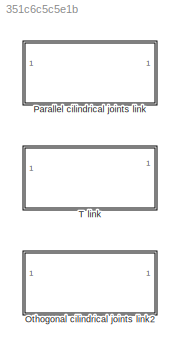
MODEL slx_351c6c5c5e1b
KIND library
CONFIG AbsTol = auto
CONFIG EnableMultiTasking = off
CONFIG FixedStep = auto
CONFIG MaxStep = auto
CONFIG MinStep = auto
CONFIG RelTol = 1e-3
CONFIG SampleTimeConstraint = Unconstrained
CONFIG SolverName = VariableStepAuto
CONFIG StartTime = 0.0
CONFIG StopTime = 10.0
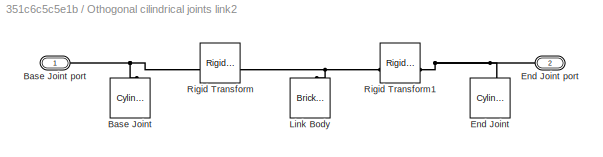
BLOCK [SubSystem] Othogonal cilindrical joints link2
  VariantControl = Choice
BLOCK [Reference] Othogonal cilindrical joints link2/Base Joint  REF=sm_lib/Body Elements/Cylindrical Solid
  NameLocation = right
  SourceBlock = sm_lib/Body Elements/Cylindrical Solid
  SourceType = Cylindrical Solid
BLOCK [PMIOPort] Othogonal cilindrical joints link2/Base Joint port
  Side = Left
BLOCK [Reference] Othogonal cilindrical joints link2/End Joint  REF=sm_lib/Body Elements/Cylindrical Solid
  NameLocation = right
  SourceBlock = sm_lib/Body Elements/Cylindrical Solid
  SourceType = Cylindrical Solid
BLOCK [PMIOPort] Othogonal cilindrical joints link2/End Joint port
  NameLocation = top
  Port = 2
  Side = Right
BLOCK [Reference] Othogonal cilindrical joints link2/Link Body  REF=sm_lib/Body Elements/Brick Solid
  NameLocation = right
  SourceBlock = sm_lib/Body Elements/Brick Solid
  SourceType = Brick Solid
BLOCK [Reference] Othogonal cilindrical joints link2/Rigid Transform  REF=sm_lib/Frames and
Transforms/Rigid
Transform
  SourceBlock = sm_lib/Frames and\nTransforms/Rigid\nTransform
  SourceType = Rigid\nTransform
BLOCK [Reference] Othogonal cilindrical joints link2/Rigid Transform1  REF=sm_lib/Frames and
Transforms/Rigid
Transform
  SourceBlock = sm_lib/Frames and\nTransforms/Rigid\nTransform
  SourceType = Rigid\nTransform
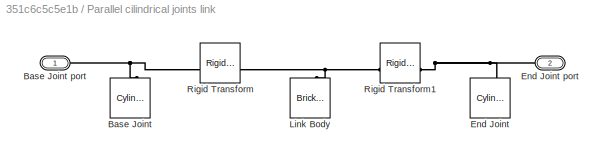
BLOCK [SubSystem] Parallel cilindrical joints link
  NameLocation = top
  VariantControl = Choice
BLOCK [Reference] Parallel cilindrical joints link/Base Joint  REF=sm_lib/Body Elements/Cylindrical Solid
  NameLocation = right
  SourceBlock = sm_lib/Body Elements/Cylindrical Solid
  SourceType = Cylindrical Solid
BLOCK [PMIOPort] Parallel cilindrical joints link/Base Joint port
  Side = Left
BLOCK [Reference] Parallel cilindrical joints link/End Joint  REF=sm_lib/Body Elements/Cylindrical Solid
  NameLocation = right
  SourceBlock = sm_lib/Body Elements/Cylindrical Solid
  SourceType = Cylindrical Solid
BLOCK [PMIOPort] Parallel cilindrical joints link/End Joint port
  NameLocation = top
  Port = 2
  Side = Right
BLOCK [Reference] Parallel cilindrical joints link/Link Body  REF=sm_lib/Body Elements/Brick Solid
  NameLocation = right
  SourceBlock = sm_lib/Body Elements/Brick Solid
  SourceType = Brick Solid
BLOCK [Reference] Parallel cilindrical joints link/Rigid Transform  REF=sm_lib/Frames and
Transforms/Rigid
Transform
  SourceBlock = sm_lib/Frames and\nTransforms/Rigid\nTransform
  SourceType = Rigid\nTransform
BLOCK [Reference] Parallel cilindrical joints link/Rigid Transform1  REF=sm_lib/Frames and
Transforms/Rigid
Transform
  SourceBlock = sm_lib/Frames and\nTransforms/Rigid\nTransform
  SourceType = Rigid\nTransform
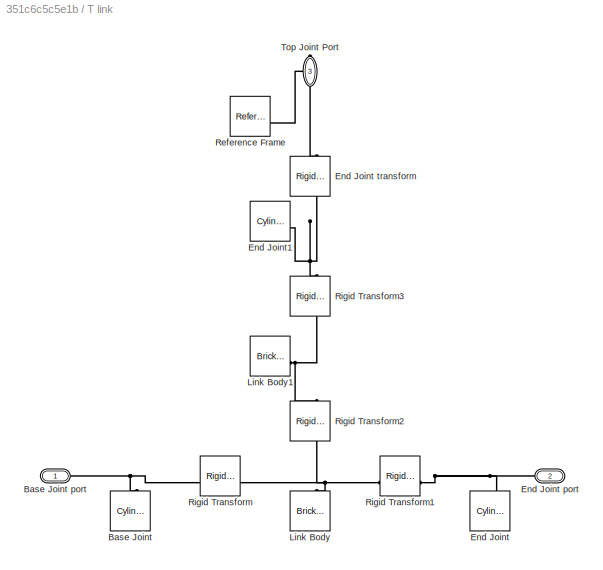
BLOCK [SubSystem] T link
  VariantControl = Choice
BLOCK [Reference] T link/Base Joint  REF=sm_lib/Body Elements/Cylindrical Solid
  NameLocation = right
  SourceBlock = sm_lib/Body Elements/Cylindrical Solid
  SourceType = Cylindrical Solid
BLOCK [PMIOPort] T link/Base Joint port
  Side = Left
BLOCK [Reference] T link/End Joint  REF=sm_lib/Body Elements/Cylindrical Solid
  NameLocation = right
  SourceBlock = sm_lib/Body Elements/Cylindrical Solid
  SourceType = Cylindrical Solid
BLOCK [PMIOPort] T link/End Joint port
  NameLocation = top
  Port = 2
  Side = Right
BLOCK [Reference] T link/End Joint transform  REF=sm_lib/Frames and
Transforms/Rigid
Transform
  NameLocation = right
  SourceBlock = sm_lib/Frames and\nTransforms/Rigid\nTransform
  SourceType = Rigid\nTransform
BLOCK [Reference] T link/End Joint1  REF=sm_lib/Body Elements/Cylindrical Solid
  SourceBlock = sm_lib/Body Elements/Cylindrical Solid
  SourceType = Cylindrical Solid
BLOCK [Reference] T link/Link Body  REF=sm_lib/Body Elements/Brick Solid
  NameLocation = right
  SourceBlock = sm_lib/Body Elements/Brick Solid
  SourceType = Brick Solid
BLOCK [Reference] T link/Link Body1  REF=sm_lib/Body Elements/Brick Solid
  SourceBlock = sm_lib/Body Elements/Brick Solid
  SourceType = Brick Solid
BLOCK [Reference] T link/Reference Frame  REF=sm_lib/Frames and
Transforms/Reference
Frame
  SourceBlock = sm_lib/Frames and\nTransforms/Reference\nFrame
  SourceType = Reference\nFrame
BLOCK [Reference] T link/Rigid Transform  REF=sm_lib/Frames and
Transforms/Rigid
Transform
  SourceBlock = sm_lib/Frames and\nTransforms/Rigid\nTransform
  SourceType = Rigid\nTransform
BLOCK [Reference] T link/Rigid Transform1  REF=sm_lib/Frames and
Transforms/Rigid
Transform
  SourceBlock = sm_lib/Frames and\nTransforms/Rigid\nTransform
  SourceType = Rigid\nTransform
BLOCK [Reference] T link/Rigid Transform2  REF=sm_lib/Frames and
Transforms/Rigid
Transform
  NameLocation = left
  SourceBlock = sm_lib/Frames and\nTransforms/Rigid\nTransform
  SourceType = Rigid\nTransform
BLOCK [Reference] T link/Rigid Transform3  REF=sm_lib/Frames and
Transforms/Rigid
Transform
  NameLocation = left
  SourceBlock = sm_lib/Frames and\nTransforms/Rigid\nTransform
  SourceType = Rigid\nTransform
BLOCK [PMIOPort] T link/Top Joint Port
  NameLocation = left
  Port = 3
  Side = Right
PNET net1: Othogonal cilindrical joints link2/Base Joint port:RConn1 -- Othogonal cilindrical joints link2/Base Joint:RConn1 -- Othogonal cilindrical joints link2/Rigid Transform:LConn1
PNET net2: Othogonal cilindrical joints link2/End Joint port:RConn1 -- Othogonal cilindrical joints link2/End Joint:RConn1 -- Othogonal cilindrical joints link2/Rigid Transform1:RConn1
PNET net3: Othogonal cilindrical joints link2/Link Body:RConn1 -- Othogonal cilindrical joints link2/Rigid Transform1:LConn1 -- Othogonal cilindrical joints link2/Rigid Transform:RConn1
PNET net4: Parallel cilindrical joints link/Base Joint port:RConn1 -- Parallel cilindrical joints link/Base Joint:RConn1 -- Parallel cilindrical joints link/Rigid Transform:LConn1
PNET net5: Parallel cilindrical joints link/End Joint port:RConn1 -- Parallel cilindrical joints link/End Joint:RConn1 -- Parallel cilindrical joints link/Rigid Transform1:RConn1
PNET net6: Parallel cilindrical joints link/Link Body:RConn1 -- Parallel cilindrical joints link/Rigid Transform1:LConn1 -- Parallel cilindrical joints link/Rigid Transform:RConn1
PNET net7: T link/Base Joint port:RConn1 -- T link/Base Joint:RConn1 -- T link/Rigid Transform:LConn1
PNET net8: T link/End Joint port:RConn1 -- T link/End Joint:RConn1 -- T link/Rigid Transform1:RConn1
PNET net9: T link/End Joint transform:LConn1 -- T link/End Joint1:RConn1 -- T link/Rigid Transform3:LConn1
PNET net10: T link/End Joint transform:RConn1 -- T link/Reference Frame:RConn1 -- T link/Top Joint Port:RConn1
PNET net11: T link/Link Body1:RConn1 -- T link/Rigid Transform2:LConn1 -- T link/Rigid Transform3:RConn1
PNET net12: T link/Link Body:RConn1 -- T link/Rigid Transform1:LConn1 -- T link/Rigid Transform2:RConn1 -- T link/Rigid Transform:RConn1
note: PNET lines group multi-terminal physical nets as a canonical sorted terminal list (undirected conserving connections); 2-terminal nets keep the pairwise PLINE form
